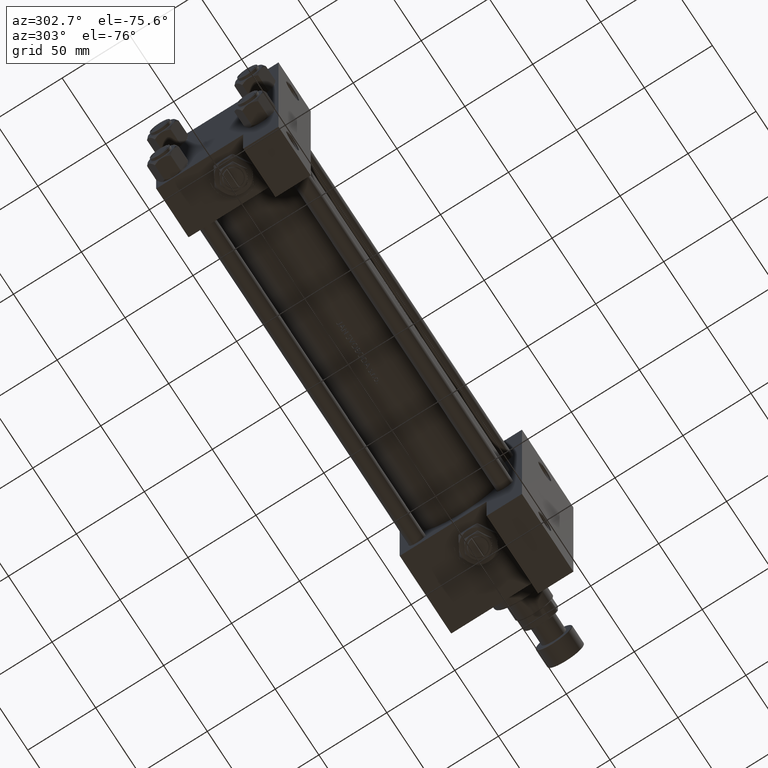
[diagram: clean part render]
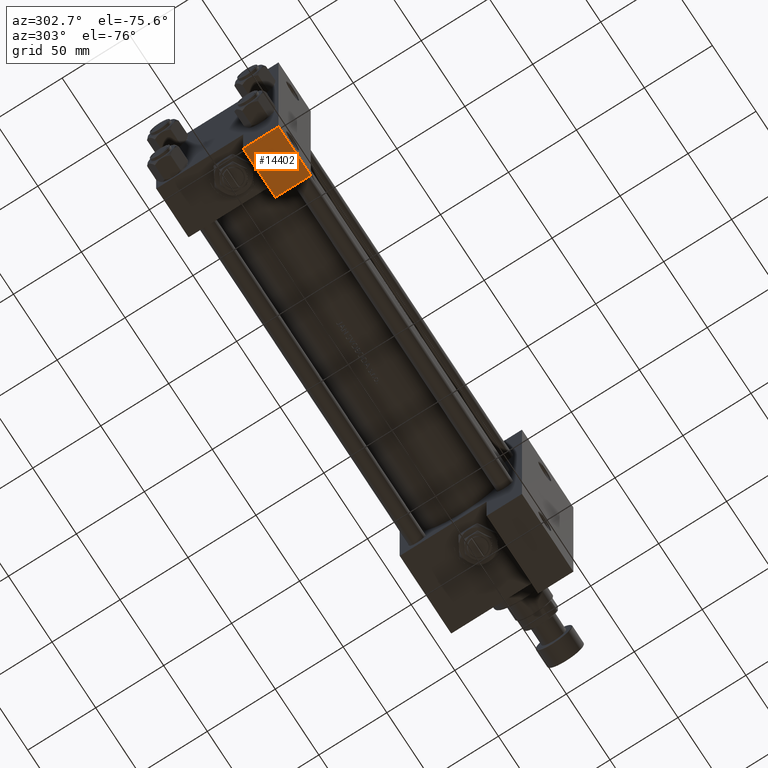
[diagram: same view with one face highlighted and labeled with its STEP entity id]
A machine part, auxiliary view. The second image highlights one B-rep face of the part: STEP entity #14402.
In plain terms, the highlighted planar face has unit normal (0, -0, -1).
Its self-contained STEP definition (entity closure, byte-faithful):
#118 = LINE ( 'NONE', #23203, #46339 ) ;
#122 = ORIENTED_EDGE ( 'NONE', *, *, #22267, .F. ) ;
#747 = VERTEX_POINT ( 'NONE', #6302 ) ;
#2744 = ORIENTED_EDGE ( 'NONE', *, *, #34841, .T. ) ;
#3741 = LINE ( 'NONE', #23009, #44461 ) ;
#3993 = DIRECTION ( 'NONE',  ( 0.000000000000000000, 1.734723475976806848E-16, 1.000000000000000000 ) ) ;
#4417 = VERTEX_POINT ( 'NONE', #28785 ) ;
#6302 = CARTESIAN_POINT ( 'NONE',  ( 1.999206976185762377E-14, 80.00000000000001421, -18.99999999999999645 ) ) ;
#6622 = EDGE_LOOP ( 'NONE', ( #122, #2744, #24257, #18837 ) ) ;
#7277 = PLANE ( 'NONE',  #49139 ) ;
#9613 = VECTOR ( 'NONE', #45730, 1000.000000000000000 ) ;
#11345 = CARTESIAN_POINT ( 'NONE',  ( 1.999206976185762377E-14, 80.00000000000002842, 31.93132631298737678 ) ) ;
#12508 = VERTEX_POINT ( 'NONE', #41027 ) ;
#14402 = ADVANCED_FACE ( 'NONE', ( #38940 ), #7277, .T. ) ;
#15074 = CARTESIAN_POINT ( 'NONE',  ( 1.999206976185762377E-14, 80.00000000000001421, -45.00000000000000711 ) ) ;
#17364 = VERTEX_POINT ( 'NONE', #30529 ) ;
#18403 = DIRECTION ( 'NONE',  ( 0.000000000000000000, -1.734723475976806848E-16, -1.000000000000000000 ) ) ;
#18837 = ORIENTED_EDGE ( 'NONE', *, *, #20091, .F. ) ;
#19373 = LINE ( 'NONE', #43418, #24985 ) ;
#20091 = EDGE_CURVE ( 'NONE', #747, #17364, #3741, .T. ) ;
#22267 = EDGE_CURVE ( 'NONE', #4417, #747, #19373, .T. ) ;
#23009 = CARTESIAN_POINT ( 'NONE',  ( 1.999206976185762377E-14, 80.00000000000002842, 31.93132631298737678 ) ) ;
#23203 = CARTESIAN_POINT ( 'NONE',  ( 37.00000000000002132, 80.00000000000002842, 31.93132631298737678 ) ) ;
#24257 = ORIENTED_EDGE ( 'NONE', *, *, #50033, .F. ) ;
#24985 = VECTOR ( 'NONE', #46467, 1000.000000000000000 ) ;
#28785 = CARTESIAN_POINT ( 'NONE',  ( 37.00000000000002132, 80.00000000000001421, -18.99999999999999645 ) ) ;
#30529 = CARTESIAN_POINT ( 'NONE',  ( 1.999206976185762377E-14, 80.00000000000001421, -45.00000000000000711 ) ) ;
#34137 = DIRECTION ( 'NONE',  ( 0.000000000000000000, 1.000000000000000000, -1.734723475976806848E-16 ) ) ;
#34841 = EDGE_CURVE ( 'NONE', #4417, #12508, #118, .T. ) ;
#38173 = DIRECTION ( 'NONE',  ( 0.000000000000000000, -1.734723475976806848E-16, -1.000000000000000000 ) ) ;
#38940 = FACE_OUTER_BOUND ( 'NONE', #6622, .T. ) ;
#41027 = CARTESIAN_POINT ( 'NONE',  ( 37.00000000000002132, 80.00000000000001421, -45.00000000000000711 ) ) ;
#42174 = LINE ( 'NONE', #15074, #9613 ) ;
#43418 = CARTESIAN_POINT ( 'NONE',  ( 1.999206976185762377E-14, 80.00000000000001421, -18.99999999999999645 ) ) ;
#44461 = VECTOR ( 'NONE', #38173, 1000.000000000000000 ) ;
#45730 = DIRECTION ( 'NONE',  ( 1.000000000000000000, 0.000000000000000000, 0.000000000000000000 ) ) ;
#46339 = VECTOR ( 'NONE', #18403, 1000.000000000000000 ) ;
#46467 = DIRECTION ( 'NONE',  ( -1.000000000000000000, 0.000000000000000000, 0.000000000000000000 ) ) ;
#49139 = AXIS2_PLACEMENT_3D ( 'NONE', #11345, #34137, #3993 ) ;
#50033 = EDGE_CURVE ( 'NONE', #17364, #12508, #42174, .T. ) ;